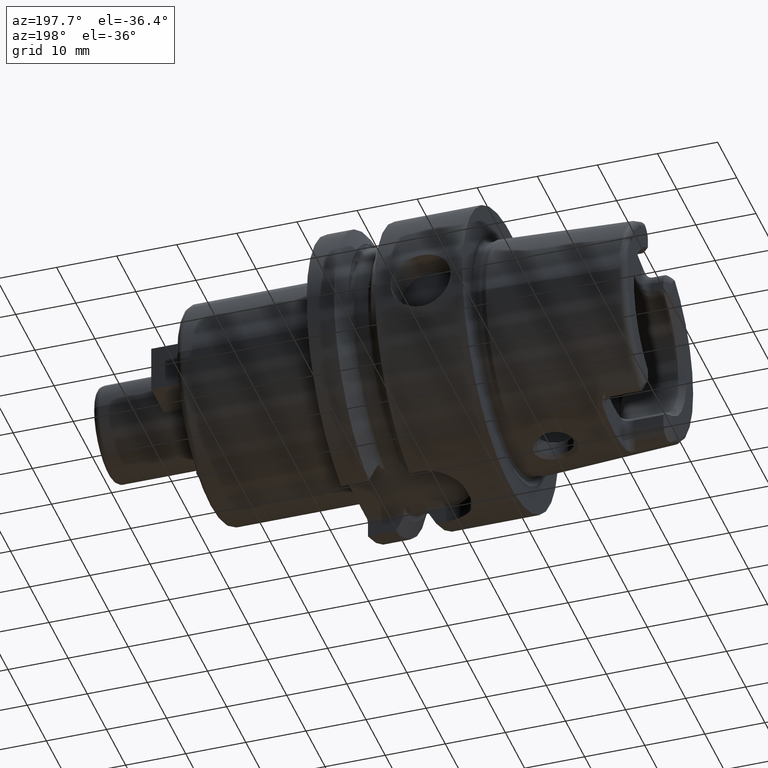
[diagram: clean part render]
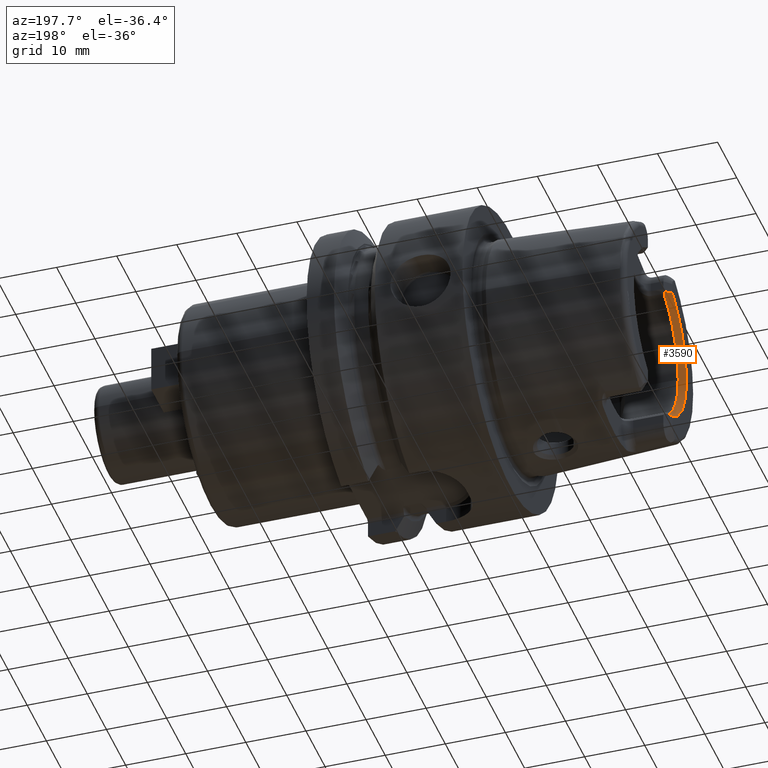
[diagram: same view with one face highlighted and labeled with its STEP entity id]
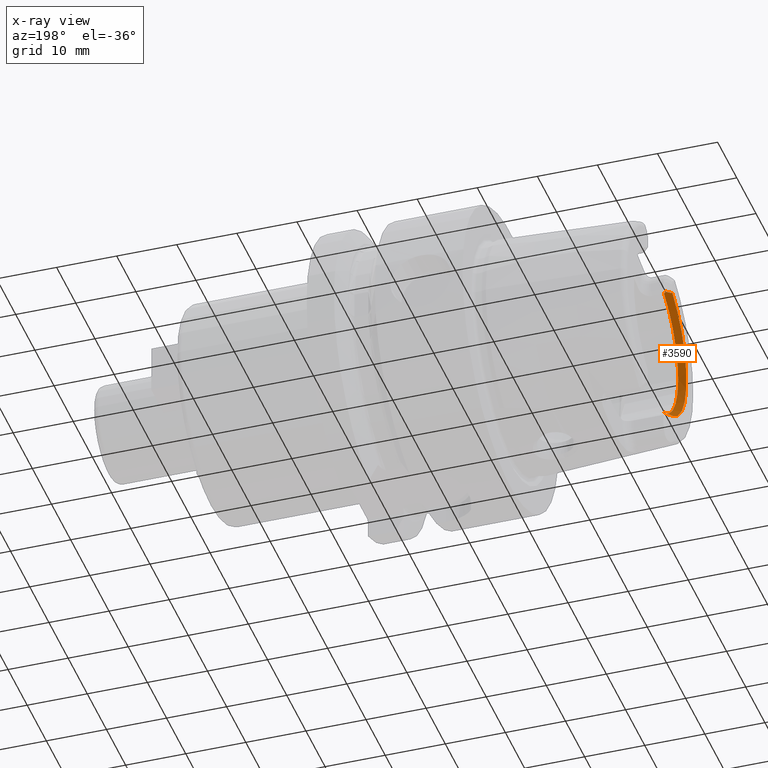
[diagram: x-ray of the same camera — body ghosted, the highlighted face saturated]
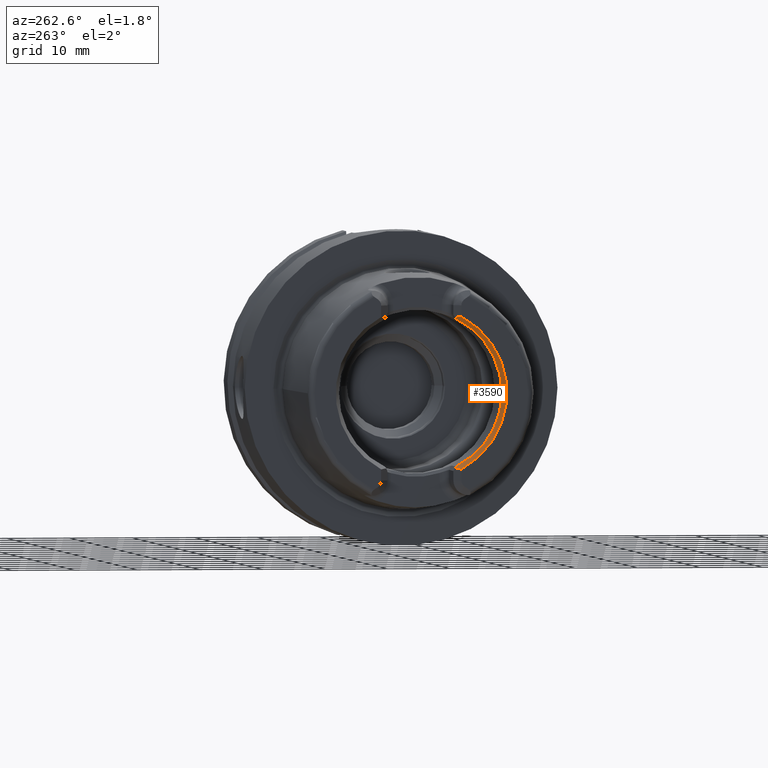
[diagram: same view with one face highlighted and labeled with its STEP entity id]
A machine part, auxiliary view. The second image highlights one B-rep face of the part: STEP entity #3590.
The next image is the same camera in x-ray: the body ghosted, the highlighted face saturated — about 0% of this face is hidden behind the body in this view.
A second angle (auxiliary view) of the same face is appended — the face is thin or edge-on in the first view.
In plain terms, the highlighted conical surface has half-angle 30 deg.
Its self-contained STEP definition (entity closure, byte-faithful):
#175=CARTESIAN_POINT('',(-2.49E1,-6.42E0,-1.208559197558E1));
#176=CARTESIAN_POINT('',(-2.460323351242E1,-6.123233512423E0,
-1.204922516050E1));
#177=CARTESIAN_POINT('',(-2.430701275084E1,-5.827012750844E0,
-1.200548112282E1));
#178=CARTESIAN_POINT('',(-2.401134964246E1,-5.531349642461E0,
-1.195419862854E1));
#180=CARTESIAN_POINT('',(-2.375E1,-5.663896977569E0,-1.172461990972E1));
#181=CARTESIAN_POINT('',(-2.379269347871E1,-5.641979365634E0,
-1.176258232718E1));
#182=CARTESIAN_POINT('',(-2.387894407448E1,-5.597969971094E0,
-1.183880883453E1));
#183=CARTESIAN_POINT('',(-2.396692546579E1,-5.553613929678E0,
-1.191563575188E1));
#184=CARTESIAN_POINT('',(-2.401134964246E1,-5.531349642461E0,
-1.195419862854E1));
#186=CARTESIAN_POINT('',(-2.375E1,0.E0,0.E0));
#187=DIRECTION('',(-1.E0,0.E0,0.E0));
#188=DIRECTION('',(0.E0,-4.349817201113E-1,-9.004392834439E-1));
#189=AXIS2_PLACEMENT_3D('',#186,#187,#188);
#191=CARTESIAN_POINT('',(-2.375E1,0.E0,0.E0));
#192=DIRECTION('',(1.E0,0.E0,0.E0));
#193=DIRECTION('',(0.E0,-4.349817201113E-1,9.004392834439E-1));
#194=AXIS2_PLACEMENT_3D('',#191,#192,#193);
#196=CARTESIAN_POINT('',(-2.401134964246E1,-5.531349642461E0,1.195419862854E1));
#197=CARTESIAN_POINT('',(-2.396692978621E1,-5.553611764391E0,1.191563950227E1));
#198=CARTESIAN_POINT('',(-2.387895266426E1,-5.597965614888E0,1.183881637970E1));
#199=CARTESIAN_POINT('',(-2.379269774676E1,-5.641977174539E0,1.176258612226E1));
#200=CARTESIAN_POINT('',(-2.375E1,-5.663896977569E0,1.172461990972E1));
#202=CARTESIAN_POINT('',(-2.401134964246E1,-5.531349642461E0,1.195419862854E1));
#203=CARTESIAN_POINT('',(-2.430701275084E1,-5.827012750844E0,1.200548112282E1));
#204=CARTESIAN_POINT('',(-2.460323351242E1,-6.123233512423E0,1.204922516050E1));
#205=CARTESIAN_POINT('',(-2.49E1,-6.42E0,1.208559197558E1));
#207=CARTESIAN_POINT('',(-2.49E1,0.E0,0.E0));
#208=DIRECTION('',(1.E0,0.E0,0.E0));
#209=DIRECTION('',(0.E0,-4.691283988580E-1,8.831299708338E-1));
#210=AXIS2_PLACEMENT_3D('',#207,#208,#209);
#3009=CARTESIAN_POINT('',(-2.49E1,-6.42E0,1.208559197558E1));
#3011=VERTEX_POINT('',#3009);
#3021=CARTESIAN_POINT('',(-2.401134964246E1,-5.531349642461E0,
1.195419862854E1));
#3022=VERTEX_POINT('',#3021);
#3041=CARTESIAN_POINT('',(-2.49E1,-6.42E0,-1.208559197558E1));
#3043=VERTEX_POINT('',#3041);
#3057=CARTESIAN_POINT('',(-2.401134964246E1,-5.531349642461E0,
-1.195419862854E1));
#3058=VERTEX_POINT('',#3057);
#3272=CARTESIAN_POINT('',(-2.375E1,-1.3021E1,0.E0));
#3273=VERTEX_POINT('',#3272);
#3276=CARTESIAN_POINT('',(-2.375E1,-5.663896977569E0,1.172461990972E1));
#3277=VERTEX_POINT('',#3276);
#3278=CARTESIAN_POINT('',(-2.375E1,-5.663896977569E0,-1.172461990972E1));
#3279=VERTEX_POINT('',#3278);
#3570=CARTESIAN_POINT('',(-2.4325E1,0.E0,0.E0));
#3571=DIRECTION('',(-1.E0,0.E0,0.E0));
#3572=DIRECTION('',(0.E0,1.E0,0.E0));
#3573=AXIS2_PLACEMENT_3D('',#3570,#3571,#3572);
#3574=CONICAL_SURFACE('',#3573,1.335297640478E1,3.E1);
#3576=ORIENTED_EDGE('',*,*,#3575,.T.);
#3578=ORIENTED_EDGE('',*,*,#3577,.F.);
#3580=ORIENTED_EDGE('',*,*,#3579,.T.);
#3582=ORIENTED_EDGE('',*,*,#3581,.F.);
#3584=ORIENTED_EDGE('',*,*,#3583,.F.);
#3586=ORIENTED_EDGE('',*,*,#3585,.T.);
#3587=ORIENTED_EDGE('',*,*,#3517,.T.);
#3588=EDGE_LOOP('',(#3576,#3578,#3580,#3582,#3584,#3586,#3587));
#3589=FACE_OUTER_BOUND('',#3588,.F.);
#3590=ADVANCED_FACE('',(#3589),#3574,.F.);
#179=B_SPLINE_CURVE_WITH_KNOTS('',3,(#175,#176,#177,#178),.UNSPECIFIED.,.F.,.F.,
(4,4),(0.E0,1.E0),.UNSPECIFIED.);
#185=B_SPLINE_CURVE_WITH_KNOTS('',3,(#180,#181,#182,#183,#184),.UNSPECIFIED.,
.F.,.F.,(4,1,4),(0.E0,5.E-1,1.E0),.UNSPECIFIED.);
#190=CIRCLE('',#189,1.3021E1);
#195=CIRCLE('',#194,1.3021E1);
#201=B_SPLINE_CURVE_WITH_KNOTS('',3,(#196,#197,#198,#199,#200),.UNSPECIFIED.,
.F.,.F.,(4,1,4),(0.E0,5.E-1,1.E0),.UNSPECIFIED.);
#206=B_SPLINE_CURVE_WITH_KNOTS('',3,(#202,#203,#204,#205),.UNSPECIFIED.,.F.,.F.,
(4,4),(0.E0,1.E0),.UNSPECIFIED.);
#211=CIRCLE('',#210,1.368495280957E1);
#3517=EDGE_CURVE('',#3011,#3043,#211,.T.);
#3575=EDGE_CURVE('',#3043,#3058,#179,.T.);
#3577=EDGE_CURVE('',#3279,#3058,#185,.T.);
#3579=EDGE_CURVE('',#3279,#3273,#190,.T.);
#3581=EDGE_CURVE('',#3277,#3273,#195,.T.);
#3583=EDGE_CURVE('',#3022,#3277,#201,.T.);
#3585=EDGE_CURVE('',#3022,#3011,#206,.T.);